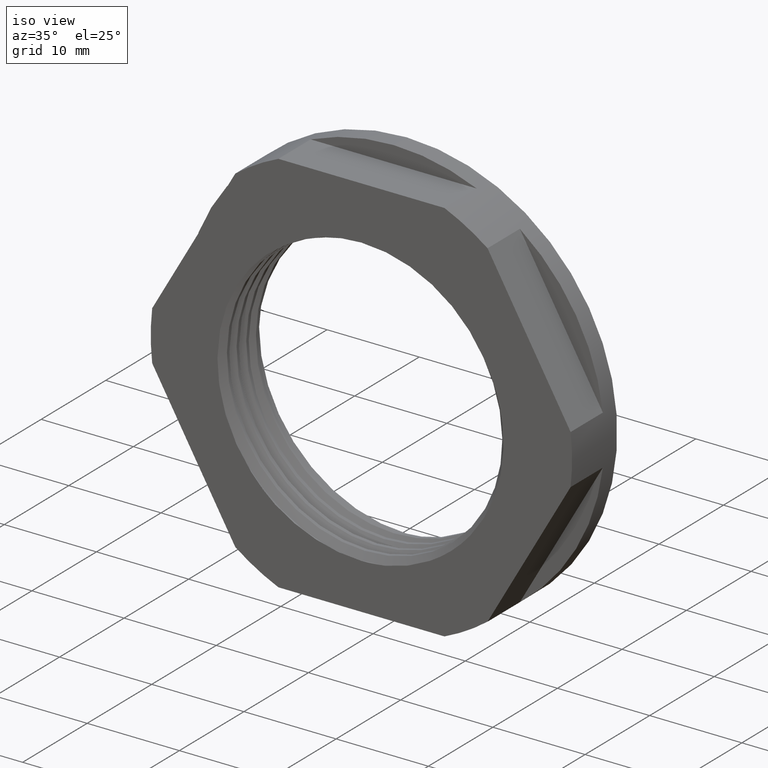
[diagram: clean part render]
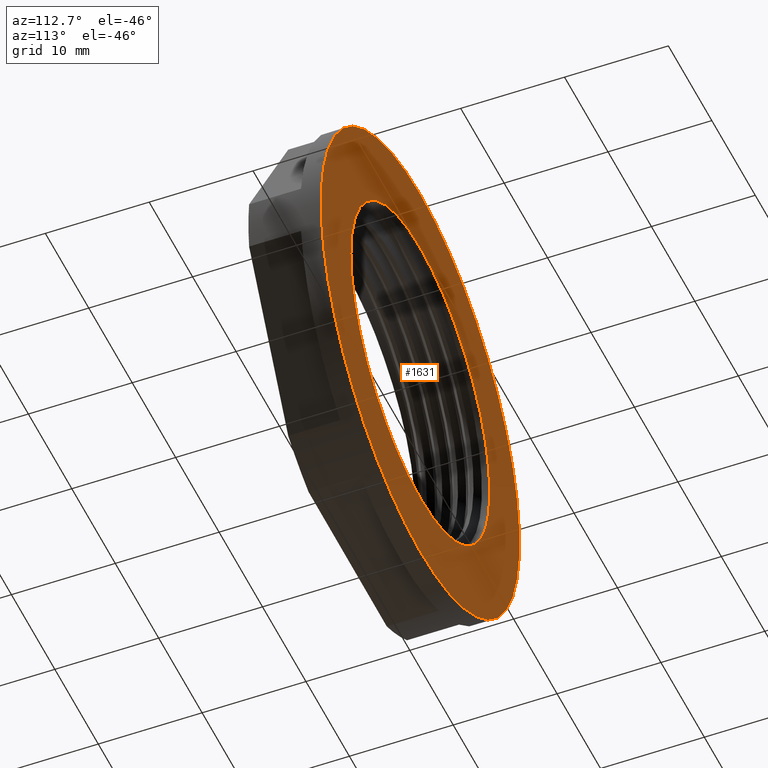
[diagram: tour spotlight — one face highlighted and labeled with its STEP entity id]
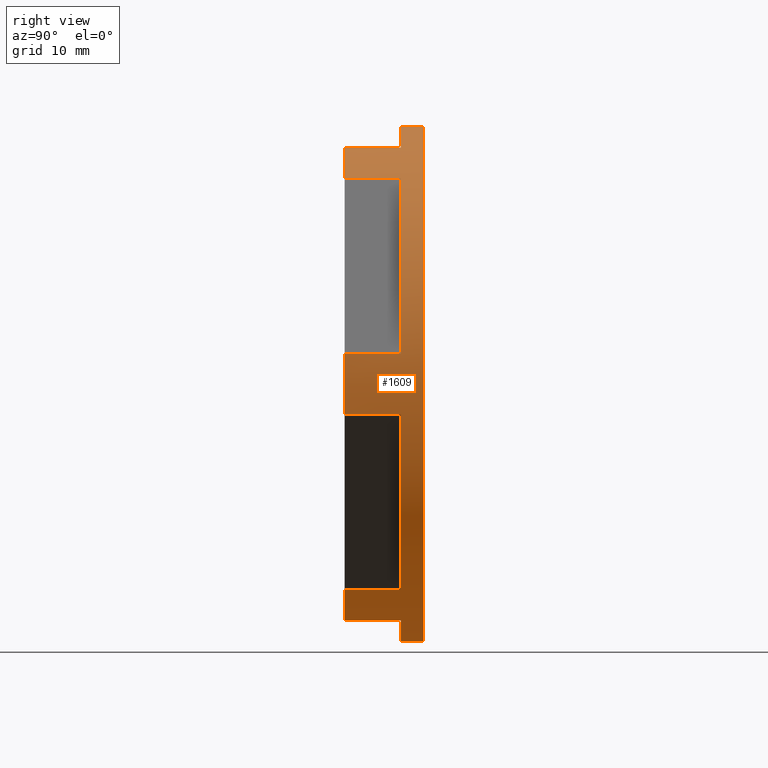
[diagram: tour spotlight — one face highlighted and labeled with its STEP entity id]
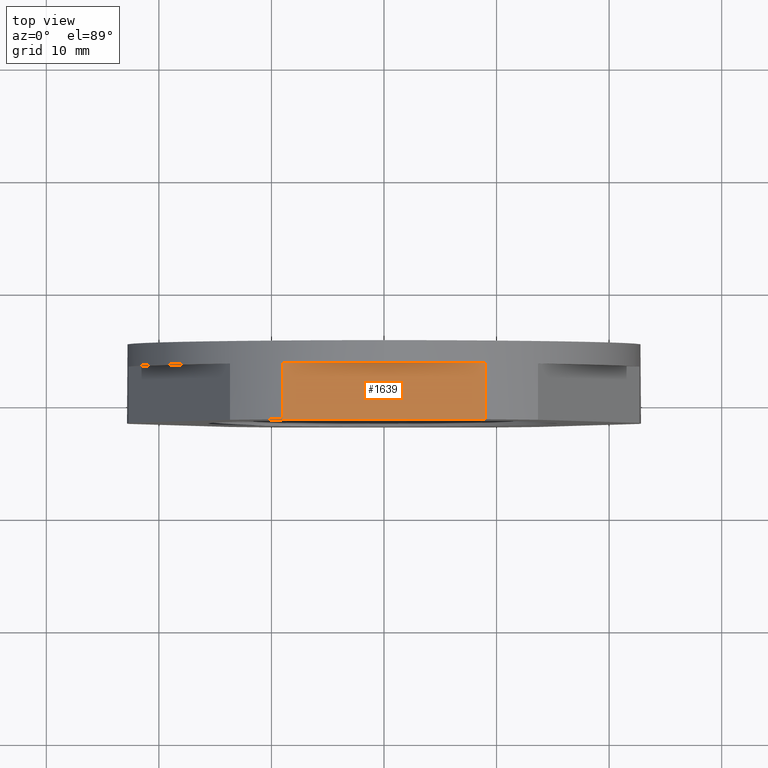
[diagram: tour spotlight — one face highlighted and labeled with its STEP entity id]
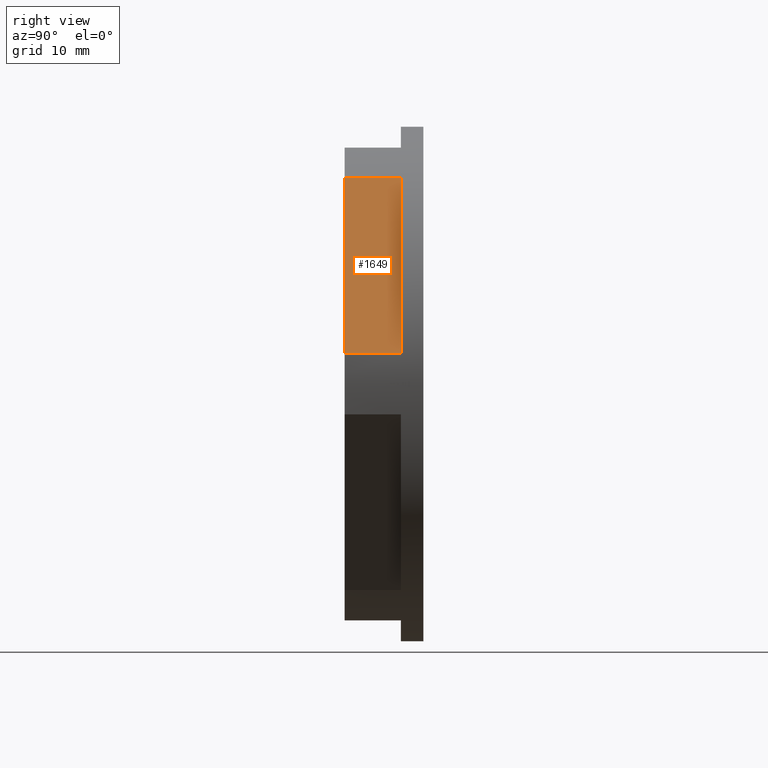
[diagram: tour spotlight — one face highlighted and labeled with its STEP entity id]
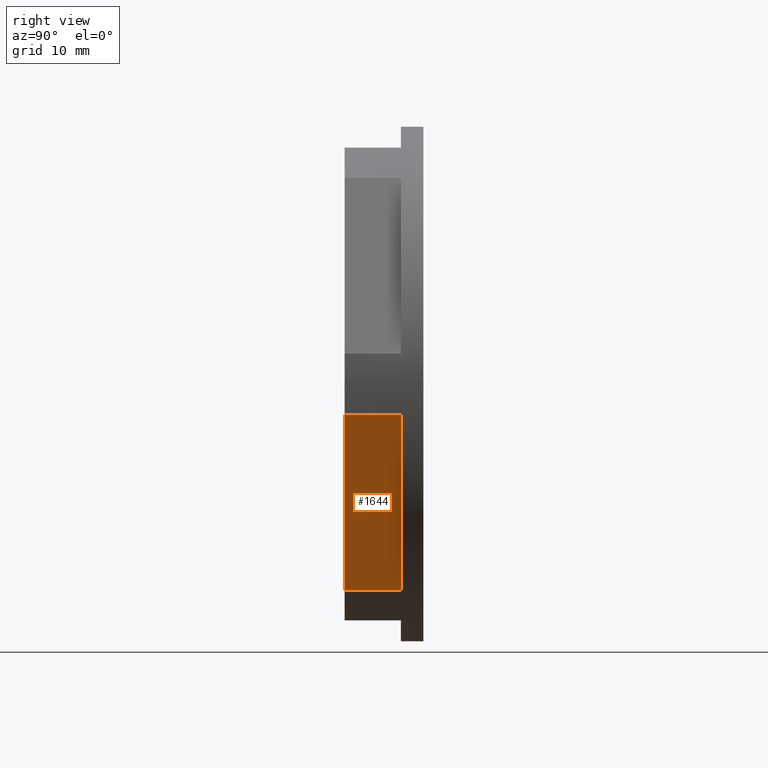
[diagram: tour spotlight — one face highlighted and labeled with its STEP entity id]
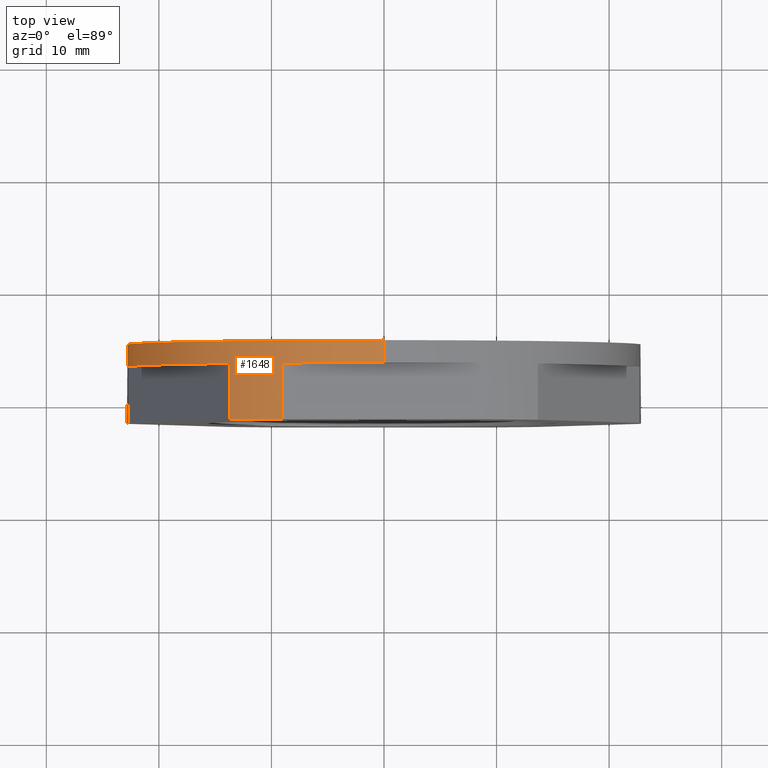
[diagram: tour spotlight — one face highlighted and labeled with its STEP entity id]
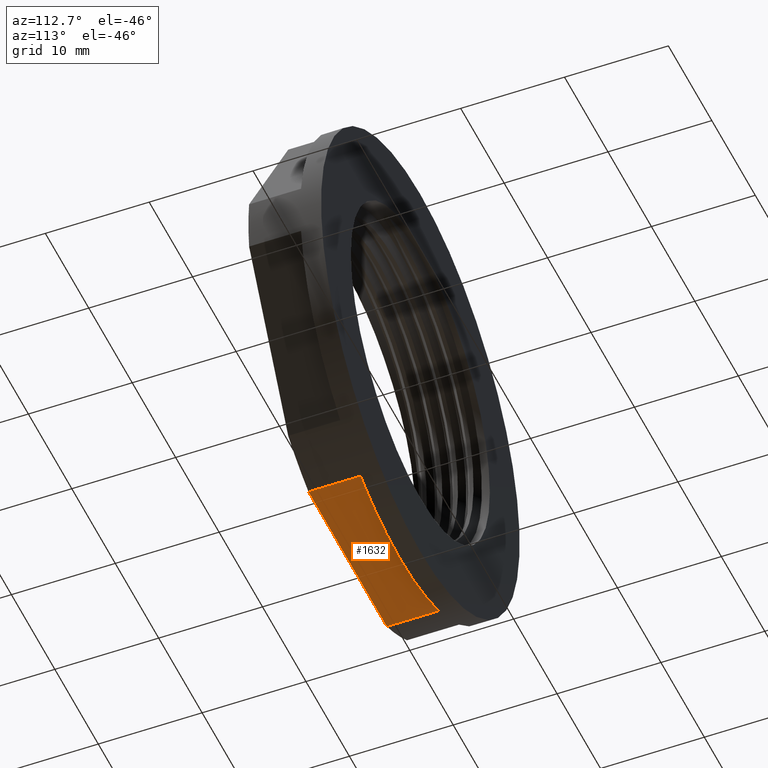
[diagram: tour spotlight — one face highlighted and labeled with its STEP entity id]
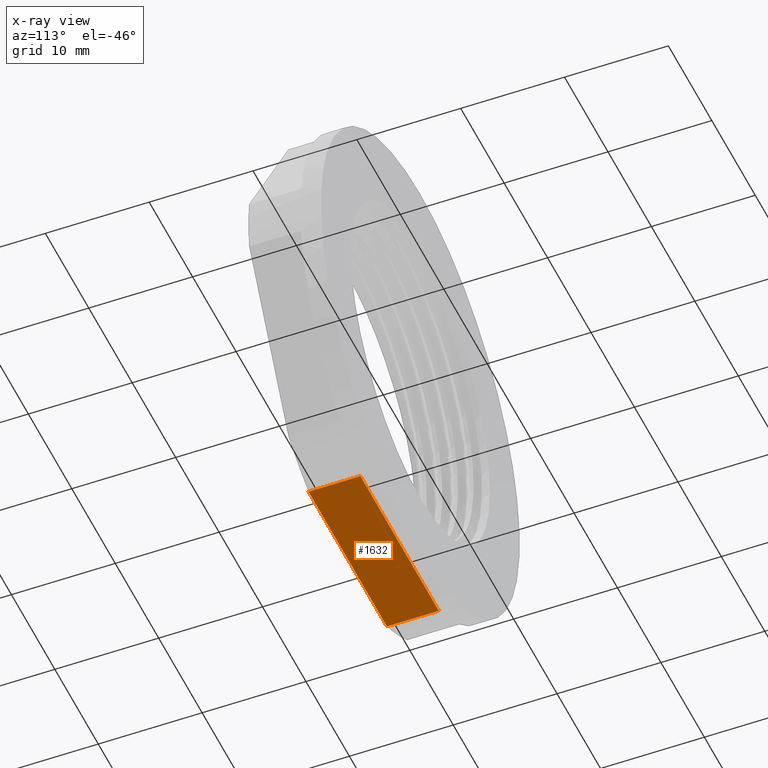
[diagram: x-ray of the same camera — body ghosted, this tour face saturated]
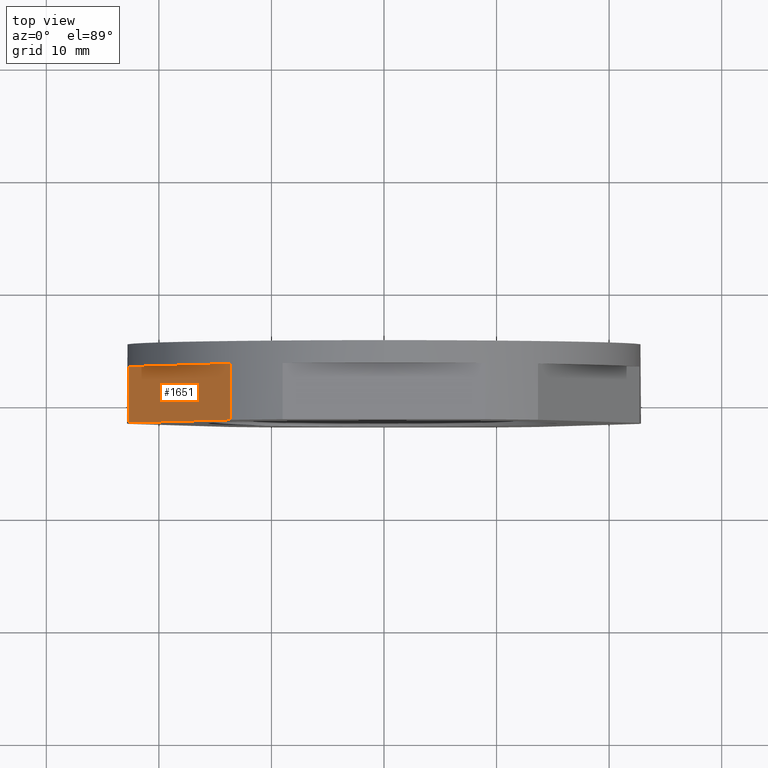
[diagram: tour spotlight — one face highlighted and labeled with its STEP entity id]
A machine part: a face-by-face anatomy tour. The part has 40 B-rep faces; the first image is the clean iso view, then the 8 largest visible faces are spotlighted one at a time (largest first), each with its STEP entity span.

Face 1 — auxiliary view, entity #1631. In plain terms, the highlighted planar face has unit normal (0, -1, 0).
Definition (entity closure, byte-faithful):
#17 = CARTESIAN_POINT ( 'NONE',  ( 2.798317936051703500E-015, -14.80000000000000100, 77.14999999999999100 ) ) ;
#60 = CARTESIAN_POINT ( 'NONE',  ( 0.0000000000000000000, -14.80000000000000100, 116.0000000000000000 ) ) ;
#85 = CARTESIAN_POINT ( 'NONE',  ( 0.0000000000000000000, -14.80000000000000100, 122.8500000000000100 ) ) ;
#198 = DIRECTION ( 'NONE',  ( 0.0000000000000000000, 1.000000000000000000, 0.0000000000000000000 ) ) ;
#219 = DIRECTION ( 'NONE',  ( 0.0000000000000000000, 0.0000000000000000000, 1.000000000000000000 ) ) ;
#234 = CARTESIAN_POINT ( 'NONE',  ( 0.0000000000000000000, -14.80000000000000100, 100.0000000000000000 ) ) ;
#254 = VERTEX_POINT ( 'NONE', #360 ) ;
#284 = VERTEX_POINT ( 'NONE', #60 ) ;
#302 = VERTEX_POINT ( 'NONE', #17 ) ;
#323 = VERTEX_POINT ( 'NONE', #85 ) ;
#357 = EDGE_LOOP ( 'NONE', ( #581, #556 ) ) ;
#359 = EDGE_LOOP ( 'NONE', ( #575, #370 ) ) ;
#360 = CARTESIAN_POINT ( 'NONE',  ( 1.959434878635765100E-015, -14.80000000000000100, 84.00000000000000000 ) ) ;
#370 = ORIENTED_EDGE ( 'NONE', *, *, #1543, .F. ) ;
#556 = ORIENTED_EDGE ( 'NONE', *, *, #1641, .F. ) ;
#575 = ORIENTED_EDGE ( 'NONE', *, *, #1668, .F. ) ;
#581 = ORIENTED_EDGE ( 'NONE', *, *, #1562, .F. ) ;
#645 = DIRECTION ( 'NONE',  ( 0.0000000000000000000, 0.0000000000000000000, 1.000000000000000000 ) ) ;
#655 = CARTESIAN_POINT ( 'NONE',  ( 0.0000000000000000000, -14.80000000000000100, 100.0000000000000000 ) ) ;
#668 = DIRECTION ( 'NONE',  ( -0.0000000000000000000, -1.000000000000000000, -0.0000000000000000000 ) ) ;
#1047 = DIRECTION ( 'NONE',  ( 0.0000000000000000000, -1.000000000000000000, 0.0000000000000000000 ) ) ;
#1056 = DIRECTION ( 'NONE',  ( 0.0000000000000000000, -0.0000000000000000000, -1.000000000000000000 ) ) ;
#1067 = PLANE ( 'NONE',  #1716 ) ;
#1073 = FACE_OUTER_BOUND ( 'NONE', #357, .T. ) ;
#1081 = FACE_BOUND ( 'NONE', #359, .T. ) ;
#1084 = CARTESIAN_POINT ( 'NONE',  ( 0.0000000000000000000, -14.80000000000000100, 76.70000000000000300 ) ) ;
#1127 = DIRECTION ( 'NONE',  ( 0.0000000000000000000, 0.0000000000000000000, 1.000000000000000000 ) ) ;
#1134 = CARTESIAN_POINT ( 'NONE',  ( 0.0000000000000000000, -14.80000000000000100, 100.0000000000000000 ) ) ;
#1137 = DIRECTION ( 'NONE',  ( -0.0000000000000000000, -1.000000000000000000, -0.0000000000000000000 ) ) ;
#1430 = DIRECTION ( 'NONE',  ( 0.0000000000000000000, 1.000000000000000000, 0.0000000000000000000 ) ) ;
#1432 = CARTESIAN_POINT ( 'NONE',  ( 0.0000000000000000000, -14.80000000000000100, 100.0000000000000000 ) ) ;
#1433 = DIRECTION ( 'NONE',  ( 0.0000000000000000000, 0.0000000000000000000, 1.000000000000000000 ) ) ;
#1543 = EDGE_CURVE ( 'NONE', #254, #284, #1781, .T. ) ;
#1562 = EDGE_CURVE ( 'NONE', #323, #302, #1803, .T. ) ;
#1631 = ADVANCED_FACE ( 'NONE', ( #1073, #1081 ), #1067, .F. ) ;
#1641 = EDGE_CURVE ( 'NONE', #302, #323, #1687, .T. ) ;
#1668 = EDGE_CURVE ( 'NONE', #284, #254, #1720, .T. ) ;
#1687 = CIRCLE ( 'NONE', #1690, 22.85000000000000900 ) ;
#1690 = AXIS2_PLACEMENT_3D ( 'NONE', #1134, #1137, #1127 ) ;
#1716 = AXIS2_PLACEMENT_3D ( 'NONE', #1084, #1047, #1056 ) ;
#1720 = CIRCLE ( 'NONE', #1729, 16.00000000000000000 ) ;
#1729 = AXIS2_PLACEMENT_3D ( 'NONE', #1432, #1430, #1433 ) ;
#1781 = CIRCLE ( 'NONE', #1809, 16.00000000000000000 ) ;
#1786 = AXIS2_PLACEMENT_3D ( 'NONE', #655, #668, #645 ) ;
#1803 = CIRCLE ( 'NONE', #1786, 22.85000000000000900 ) ;
#1809 = AXIS2_PLACEMENT_3D ( 'NONE', #234, #198, #219 ) ;

Face 2 — right view, entity #1609. In plain terms, the highlighted cylindrical surface (partial cylindrical patch) has radius 22.85 mm, axis along (0, 1, 0).
Definition (entity closure, byte-faithful):
#1 = CARTESIAN_POINT ( 'NONE',  ( 0.0000000000000000000, -16.80000000000000100, 122.8500000000000100 ) ) ;
#4 = CARTESIAN_POINT ( 'NONE',  ( 9.006802984411331500, -16.80000000000000100, 121.0000000000000000 ) ) ;
#5 = CARTESIAN_POINT ( 'NONE',  ( 13.68313198726754000, -16.80000000000000100, 81.69987980861830600 ) ) ;
#9 = CARTESIAN_POINT ( 'NONE',  ( 22.68993497167886600, -21.80000000000000100, 102.6998798086182900 ) ) ;
#17 = CARTESIAN_POINT ( 'NONE',  ( 2.798317936051703500E-015, -14.80000000000000100, 77.14999999999999100 ) ) ;
#22 = CARTESIAN_POINT ( 'NONE',  ( 13.68313198726753700, -21.80000000000000100, 118.3001201913817100 ) ) ;
#23 = CARTESIAN_POINT ( 'NONE',  ( 22.68993497167887000, -21.80000000000000100, 97.30012019138172300 ) ) ;
#30 = CARTESIAN_POINT ( 'NONE',  ( 13.68313198726754000, -21.80000000000000100, 81.69987980861830600 ) ) ;
#32 = CARTESIAN_POINT ( 'NONE',  ( 22.68993497167887000, -16.80000000000000100, 102.6998798086182900 ) ) ;
#47 = CARTESIAN_POINT ( 'NONE',  ( 13.68313198726753500, -16.80000000000000100, 118.3001201913817100 ) ) ;
#57 = CARTESIAN_POINT ( 'NONE',  ( 9.006802984411331500, -21.80000000000000100, 121.0000000000000000 ) ) ;
#59 = CARTESIAN_POINT ( 'NONE',  ( 9.006802984411297800, -21.80000000000000100, 79.00000000000000000 ) ) ;
#79 = CARTESIAN_POINT ( 'NONE',  ( 9.006802984411297800, -16.80000000000000100, 79.00000000000000000 ) ) ;
#85 = CARTESIAN_POINT ( 'NONE',  ( 0.0000000000000000000, -14.80000000000000100, 122.8500000000000100 ) ) ;
#109 = CARTESIAN_POINT ( 'NONE',  ( 2.798317936051703500E-015, -16.80000000000000100, 77.14999999999999100 ) ) ;
#136 = LINE ( 'NONE', #164, #1755 ) ;
#151 = DIRECTION ( 'NONE',  ( 0.0000000000000000000, 1.000000000000000000, 0.0000000000000000000 ) ) ;
#164 = CARTESIAN_POINT ( 'NONE',  ( 9.006802984411297800, -4.799999999999999800, 79.00000000000000000 ) ) ;
#208 = DIRECTION ( 'NONE',  ( 0.0000000000000000000, 1.000000000000000000, 0.0000000000000000000 ) ) ;
#210 = CARTESIAN_POINT ( 'NONE',  ( 0.0000000000000000000, -21.80000000000000100, 100.0000000000000000 ) ) ;
#225 = DIRECTION ( 'NONE',  ( 0.0000000000000000000, 0.0000000000000000000, 1.000000000000000000 ) ) ;
#242 = DIRECTION ( 'NONE',  ( 0.0000000000000000000, 1.000000000000000000, 0.0000000000000000000 ) ) ;
#243 = DIRECTION ( 'NONE',  ( 0.0000000000000000000, 0.0000000000000000000, 1.000000000000000000 ) ) ;
#245 = CARTESIAN_POINT ( 'NONE',  ( 0.0000000000000000000, -16.80000000000000100, 100.0000000000000000 ) ) ;
#255 = VERTEX_POINT ( 'NONE', #363 ) ;
#256 = VERTEX_POINT ( 'NONE', #32 ) ;
#257 = VERTEX_POINT ( 'NONE', #9 ) ;
#258 = VERTEX_POINT ( 'NONE', #23 ) ;
#259 = VERTEX_POINT ( 'NONE', #5 ) ;
#281 = VERTEX_POINT ( 'NONE', #59 ) ;
#289 = VERTEX_POINT ( 'NONE', #30 ) ;
#296 = VERTEX_POINT ( 'NONE', #4 ) ;
#297 = VERTEX_POINT ( 'NONE', #22 ) ;
#298 = VERTEX_POINT ( 'NONE', #57 ) ;
#302 = VERTEX_POINT ( 'NONE', #17 ) ;
#307 = VERTEX_POINT ( 'NONE', #47 ) ;
#317 = EDGE_LOOP ( 'NONE', ( #414, #455, #381, #377, #379, #388, #386, #417, #399, #375, #393, #390, #394, #371, #378, #444 ) ) ;
#319 = VERTEX_POINT ( 'NONE', #1 ) ;
#323 = VERTEX_POINT ( 'NONE', #85 ) ;
#325 = VERTEX_POINT ( 'NONE', #109 ) ;
#326 = VERTEX_POINT ( 'NONE', #79 ) ;
#363 = CARTESIAN_POINT ( 'NONE',  ( 22.68993497167887000, -16.80000000000000100, 97.30012019138172300 ) ) ;
#371 = ORIENTED_EDGE ( 'NONE', *, *, #1658, .T. ) ;
#375 = ORIENTED_EDGE ( 'NONE', *, *, #1670, .T. ) ;
#377 = ORIENTED_EDGE ( 'NONE', *, *, #1636, .F. ) ;
#378 = ORIENTED_EDGE ( 'NONE', *, *, #1541, .T. ) ;
#379 = ORIENTED_EDGE ( 'NONE', *, *, #1633, .T. ) ;
#381 = ORIENTED_EDGE ( 'NONE', *, *, #1641, .T. ) ;
#386 = ORIENTED_EDGE ( 'NONE', *, *, #1666, .T. ) ;
#388 = ORIENTED_EDGE ( 'NONE', *, *, #1637, .T. ) ;
#390 = ORIENTED_EDGE ( 'NONE', *, *, #1655, .T. ) ;
#393 = ORIENTED_EDGE ( 'NONE', *, *, #1657, .T. ) ;
#394 = ORIENTED_EDGE ( 'NONE', *, *, #1548, .T. ) ;
#399 = ORIENTED_EDGE ( 'NONE', *, *, #1672, .T. ) ;
#414 = ORIENTED_EDGE ( 'NONE', *, *, #1634, .T. ) ;
#417 = ORIENTED_EDGE ( 'NONE', *, *, #1660, .T. ) ;
#444 = ORIENTED_EDGE ( 'NONE', *, *, #1526, .T. ) ;
#455 = ORIENTED_EDGE ( 'NONE', *, *, #1635, .T. ) ;
#796 = FACE_OUTER_BOUND ( 'NONE', #317, .T. ) ;
#797 = DIRECTION ( 'NONE',  ( 0.0000000000000000000, 1.000000000000000000, 0.0000000000000000000 ) ) ;
#798 = DIRECTION ( 'NONE',  ( 0.0000000000000000000, 0.0000000000000000000, 1.000000000000000000 ) ) ;
#829 = CARTESIAN_POINT ( 'NONE',  ( 0.0000000000000000000, -21.80000000000000100, 100.0000000000000000 ) ) ;
#849 = DIRECTION ( 'NONE',  ( 0.0000000000000000000, 0.0000000000000000000, 1.000000000000000000 ) ) ;
#853 = CYLINDRICAL_SURFACE ( 'NONE', #1677, 22.85000000000000900 ) ;
#854 = DIRECTION ( 'NONE',  ( 0.0000000000000000000, 1.000000000000000000, 0.0000000000000000000 ) ) ;
#861 = CARTESIAN_POINT ( 'NONE',  ( 0.0000000000000000000, -4.799999999999999800, 100.0000000000000000 ) ) ;
#1051 = LINE ( 'NONE', #1091, #1700 ) ;
#1091 = CARTESIAN_POINT ( 'NONE',  ( 2.798317936051703500E-015, -4.799999999999999800, 77.14999999999999100 ) ) ;
#1092 = DIRECTION ( 'NONE',  ( 0.0000000000000000000, 1.000000000000000000, 0.0000000000000000000 ) ) ;
#1093 = CARTESIAN_POINT ( 'NONE',  ( 9.006802984411331500, -4.799999999999999800, 121.0000000000000000 ) ) ;
#1096 = DIRECTION ( 'NONE',  ( 0.0000000000000000000, 1.000000000000000000, 0.0000000000000000000 ) ) ;
#1097 = CARTESIAN_POINT ( 'NONE',  ( 0.0000000000000000000, -16.80000000000000100, 100.0000000000000000 ) ) ;
#1098 = LINE ( 'NONE', #1110, #1692 ) ;
#1099 = DIRECTION ( 'NONE',  ( -0.0000000000000000000, -1.000000000000000000, -0.0000000000000000000 ) ) ;
#1102 = DIRECTION ( 'NONE',  ( 0.0000000000000000000, 1.000000000000000000, 0.0000000000000000000 ) ) ;
#1104 = CARTESIAN_POINT ( 'NONE',  ( 0.0000000000000000000, -16.80000000000000100, 100.0000000000000000 ) ) ;
#1110 = CARTESIAN_POINT ( 'NONE',  ( 0.0000000000000000000, -4.799999999999999800, 122.8500000000000100 ) ) ;
#1111 = DIRECTION ( 'NONE',  ( 0.0000000000000000000, 0.0000000000000000000, 1.000000000000000000 ) ) ;
#1112 = DIRECTION ( 'NONE',  ( 0.0000000000000000000, 1.000000000000000000, 0.0000000000000000000 ) ) ;
#1113 = LINE ( 'NONE', #1093, #1688 ) ;
#1114 = DIRECTION ( 'NONE',  ( 0.0000000000000000000, 0.0000000000000000000, 1.000000000000000000 ) ) ;
#1127 = DIRECTION ( 'NONE',  ( 0.0000000000000000000, 0.0000000000000000000, 1.000000000000000000 ) ) ;
#1134 = CARTESIAN_POINT ( 'NONE',  ( 0.0000000000000000000, -14.80000000000000100, 100.0000000000000000 ) ) ;
#1137 = DIRECTION ( 'NONE',  ( -0.0000000000000000000, -1.000000000000000000, -0.0000000000000000000 ) ) ;
#1283 = LINE ( 'NONE', #1288, #1719 ) ;
#1288 = CARTESIAN_POINT ( 'NONE',  ( 22.68993497167887000, -4.799999999999999800, 97.30012019138172300 ) ) ;
#1289 = DIRECTION ( 'NONE',  ( 0.0000000000000000000, 1.000000000000000000, 0.0000000000000000000 ) ) ;
#1343 = DIRECTION ( 'NONE',  ( 0.0000000000000000000, 1.000000000000000000, 0.0000000000000000000 ) ) ;
#1344 = DIRECTION ( 'NONE',  ( -0.0000000000000000000, -1.000000000000000000, -0.0000000000000000000 ) ) ;
#1346 = CARTESIAN_POINT ( 'NONE',  ( 13.68313198726753700, -4.799999999999999800, 118.3001201913817100 ) ) ;
#1349 = CARTESIAN_POINT ( 'NONE',  ( 0.0000000000000000000, -21.80000000000000100, 100.0000000000000000 ) ) ;
#1351 = CARTESIAN_POINT ( 'NONE',  ( 13.68313198726754000, -4.799999999999999800, 81.69987980861830600 ) ) ;
#1357 = DIRECTION ( 'NONE',  ( 0.0000000000000000000, 0.0000000000000000000, 1.000000000000000000 ) ) ;
#1358 = LINE ( 'NONE', #1351, #1740 ) ;
#1366 = DIRECTION ( 'NONE',  ( 0.0000000000000000000, 1.000000000000000000, 0.0000000000000000000 ) ) ;
#1370 = LINE ( 'NONE', #1346, #1738 ) ;
#1440 = CARTESIAN_POINT ( 'NONE',  ( 0.0000000000000000000, -16.80000000000000100, 100.0000000000000000 ) ) ;
#1446 = DIRECTION ( 'NONE',  ( 0.0000000000000000000, 1.000000000000000000, 0.0000000000000000000 ) ) ;
#1447 = CARTESIAN_POINT ( 'NONE',  ( 22.68993497167886600, -4.799999999999999800, 102.6998798086182900 ) ) ;
#1451 = DIRECTION ( 'NONE',  ( 0.0000000000000000000, 0.0000000000000000000, 1.000000000000000000 ) ) ;
#1459 = LINE ( 'NONE', #1447, #1741 ) ;
#1465 = DIRECTION ( 'NONE',  ( -0.0000000000000000000, -1.000000000000000000, -0.0000000000000000000 ) ) ;
#1526 = EDGE_CURVE ( 'NONE', #281, #326, #136, .T. ) ;
#1541 = EDGE_CURVE ( 'NONE', #289, #281, #1752, .T. ) ;
#1548 = EDGE_CURVE ( 'NONE', #255, #259, #1777, .T. ) ;
#1609 = ADVANCED_FACE ( 'NONE', ( #796 ), #853, .T. ) ;
#1633 = EDGE_CURVE ( 'NONE', #319, #296, #1682, .T. ) ;
#1634 = EDGE_CURVE ( 'NONE', #326, #325, #1691, .T. ) ;
#1635 = EDGE_CURVE ( 'NONE', #325, #302, #1051, .T. ) ;
#1636 = EDGE_CURVE ( 'NONE', #319, #323, #1098, .T. ) ;
#1637 = EDGE_CURVE ( 'NONE', #296, #298, #1113, .T. ) ;
#1641 = EDGE_CURVE ( 'NONE', #302, #323, #1687, .T. ) ;
#1655 = EDGE_CURVE ( 'NONE', #258, #255, #1283, .T. ) ;
#1657 = EDGE_CURVE ( 'NONE', #257, #258, #1725, .T. ) ;
#1658 = EDGE_CURVE ( 'NONE', #259, #289, #1358, .T. ) ;
#1660 = EDGE_CURVE ( 'NONE', #297, #307, #1370, .T. ) ;
#1666 = EDGE_CURVE ( 'NONE', #298, #297, #1727, .T. ) ;
#1670 = EDGE_CURVE ( 'NONE', #256, #257, #1459, .T. ) ;
#1672 = EDGE_CURVE ( 'NONE', #307, #256, #1742, .T. ) ;
#1677 = AXIS2_PLACEMENT_3D ( 'NONE', #861, #854, #849 ) ;
#1682 = CIRCLE ( 'NONE', #1703, 22.85000000000000900 ) ;
#1683 = AXIS2_PLACEMENT_3D ( 'NONE', #1097, #1112, #1111 ) ;
#1687 = CIRCLE ( 'NONE', #1690, 22.85000000000000900 ) ;
#1688 = VECTOR ( 'NONE', #1099, 1000.000000000000000 ) ;
#1690 = AXIS2_PLACEMENT_3D ( 'NONE', #1134, #1137, #1127 ) ;
#1691 = CIRCLE ( 'NONE', #1683, 22.85000000000000900 ) ;
#1692 = VECTOR ( 'NONE', #1096, 1000.000000000000000 ) ;
#1700 = VECTOR ( 'NONE', #1102, 1000.000000000000000 ) ;
#1703 = AXIS2_PLACEMENT_3D ( 'NONE', #1104, #1092, #1114 ) ;
#1719 = VECTOR ( 'NONE', #1289, 1000.000000000000000 ) ;
#1724 = AXIS2_PLACEMENT_3D ( 'NONE', #829, #797, #798 ) ;
#1725 = CIRCLE ( 'NONE', #1739, 22.85000000000000900 ) ;
#1727 = CIRCLE ( 'NONE', #1724, 22.85000000000000900 ) ;
#1736 = AXIS2_PLACEMENT_3D ( 'NONE', #1440, #1446, #1451 ) ;
#1738 = VECTOR ( 'NONE', #1366, 1000.000000000000000 ) ;
#1739 = AXIS2_PLACEMENT_3D ( 'NONE', #1349, #1343, #1357 ) ;
#1740 = VECTOR ( 'NONE', #1344, 1000.000000000000000 ) ;
#1741 = VECTOR ( 'NONE', #1465, 1000.000000000000000 ) ;
#1742 = CIRCLE ( 'NONE', #1736, 22.85000000000000900 ) ;
#1752 = CIRCLE ( 'NONE', #1765, 22.85000000000000900 ) ;
#1755 = VECTOR ( 'NONE', #151, 1000.000000000000000 ) ;
#1765 = AXIS2_PLACEMENT_3D ( 'NONE', #210, #208, #225 ) ;
#1777 = CIRCLE ( 'NONE', #1811, 22.85000000000000900 ) ;
#1811 = AXIS2_PLACEMENT_3D ( 'NONE', #245, #242, #243 ) ;

Face 3 — top view, entity #1639. In plain terms, the highlighted planar face has unit normal (0, 0, 1).
Definition (entity closure, byte-faithful):
#4 = CARTESIAN_POINT ( 'NONE',  ( 9.006802984411331500, -16.80000000000000100, 121.0000000000000000 ) ) ;
#57 = CARTESIAN_POINT ( 'NONE',  ( 9.006802984411331500, -21.80000000000000100, 121.0000000000000000 ) ) ;
#78 = CARTESIAN_POINT ( 'NONE',  ( -9.006802984411331500, -21.80000000000000100, 121.0000000000000000 ) ) ;
#113 = CARTESIAN_POINT ( 'NONE',  ( -9.006802984411331500, -16.80000000000000100, 121.0000000000000000 ) ) ;
#296 = VERTEX_POINT ( 'NONE', #4 ) ;
#298 = VERTEX_POINT ( 'NONE', #57 ) ;
#331 = EDGE_LOOP ( 'NONE', ( #585, #551, #586, #577 ) ) ;
#358 = VERTEX_POINT ( 'NONE', #78 ) ;
#367 = VERTEX_POINT ( 'NONE', #113 ) ;
#551 = ORIENTED_EDGE ( 'NONE', *, *, #1589, .T. ) ;
#577 = ORIENTED_EDGE ( 'NONE', *, *, #1561, .T. ) ;
#585 = ORIENTED_EDGE ( 'NONE', *, *, #1637, .F. ) ;
#586 = ORIENTED_EDGE ( 'NONE', *, *, #1594, .F. ) ;
#649 = DIRECTION ( 'NONE',  ( 1.000000000000000000, 0.0000000000000000000, 0.0000000000000000000 ) ) ;
#788 = LINE ( 'NONE', #830, #1796 ) ;
#799 = DIRECTION ( 'NONE',  ( 0.0000000000000000000, 1.000000000000000000, 0.0000000000000000000 ) ) ;
#820 = DIRECTION ( 'NONE',  ( -1.000000000000000000, 0.0000000000000000000, 0.0000000000000000000 ) ) ;
#825 = LINE ( 'NONE', #828, #1681 ) ;
#828 = CARTESIAN_POINT ( 'NONE',  ( -9.006802984411331500, -4.799999999999999800, 121.0000000000000000 ) ) ;
#830 = CARTESIAN_POINT ( 'NONE',  ( 10.19742614584678000, -16.79999999999999700, 121.0000000000000000 ) ) ;
#1087 = DIRECTION ( 'NONE',  ( 0.0000000000000000000, 0.0000000000000000000, 1.000000000000000000 ) ) ;
#1093 = CARTESIAN_POINT ( 'NONE',  ( 9.006802984411331500, -4.799999999999999800, 121.0000000000000000 ) ) ;
#1099 = DIRECTION ( 'NONE',  ( -0.0000000000000000000, -1.000000000000000000, -0.0000000000000000000 ) ) ;
#1103 = CARTESIAN_POINT ( 'NONE',  ( 10.19742614584678000, 45.86713652306130500, 121.0000000000000000 ) ) ;
#1106 = FACE_OUTER_BOUND ( 'NONE', #331, .T. ) ;
#1108 = PLANE ( 'NONE',  #1696 ) ;
#1109 = DIRECTION ( 'NONE',  ( 1.000000000000000000, 0.0000000000000000000, -0.0000000000000000000 ) ) ;
#1113 = LINE ( 'NONE', #1093, #1688 ) ;
#1405 = LINE ( 'NONE', #1406, #1806 ) ;
#1406 = CARTESIAN_POINT ( 'NONE',  ( 0.0000000000000000000, -21.80000000000000100, 121.0000000000000000 ) ) ;
#1561 = EDGE_CURVE ( 'NONE', #358, #298, #1405, .T. ) ;
#1589 = EDGE_CURVE ( 'NONE', #296, #367, #788, .T. ) ;
#1594 = EDGE_CURVE ( 'NONE', #358, #367, #825, .T. ) ;
#1637 = EDGE_CURVE ( 'NONE', #296, #298, #1113, .T. ) ;
#1639 = ADVANCED_FACE ( 'NONE', ( #1106 ), #1108, .T. ) ;
#1681 = VECTOR ( 'NONE', #799, 1000.000000000000000 ) ;
#1688 = VECTOR ( 'NONE', #1099, 1000.000000000000000 ) ;
#1696 = AXIS2_PLACEMENT_3D ( 'NONE', #1103, #1087, #1109 ) ;
#1796 = VECTOR ( 'NONE', #820, 1000.000000000000000 ) ;
#1806 = VECTOR ( 'NONE', #649, 1000.000000000000000 ) ;

Face 4 — right view, entity #1649. In plain terms, the highlighted planar face has unit normal (0.866, -0, 0.5).
Definition (entity closure, byte-faithful):
#9 = CARTESIAN_POINT ( 'NONE',  ( 22.68993497167886600, -21.80000000000000100, 102.6998798086182900 ) ) ;
#22 = CARTESIAN_POINT ( 'NONE',  ( 13.68313198726753700, -21.80000000000000100, 118.3001201913817100 ) ) ;
#32 = CARTESIAN_POINT ( 'NONE',  ( 22.68993497167887000, -16.80000000000000100, 102.6998798086182900 ) ) ;
#47 = CARTESIAN_POINT ( 'NONE',  ( 13.68313198726753500, -16.80000000000000100, 118.3001201913817100 ) ) ;
#256 = VERTEX_POINT ( 'NONE', #32 ) ;
#257 = VERTEX_POINT ( 'NONE', #9 ) ;
#297 = VERTEX_POINT ( 'NONE', #22 ) ;
#307 = VERTEX_POINT ( 'NONE', #47 ) ;
#330 = EDGE_LOOP ( 'NONE', ( #519, #518, #467, #531 ) ) ;
#467 = ORIENTED_EDGE ( 'NONE', *, *, #1660, .F. ) ;
#518 = ORIENTED_EDGE ( 'NONE', *, *, #1586, .T. ) ;
#519 = ORIENTED_EDGE ( 'NONE', *, *, #1670, .F. ) ;
#531 = ORIENTED_EDGE ( 'NONE', *, *, #1590, .T. ) ;
#750 = LINE ( 'NONE', #786, #1775 ) ;
#786 = CARTESIAN_POINT ( 'NONE',  ( 23.28524655239662200, -16.79999999999999700, 101.6687699044810000 ) ) ;
#802 = DIRECTION ( 'NONE',  ( 0.4999999999999998900, 0.0000000000000000000, -0.8660254037844387100 ) ) ;
#809 = DIRECTION ( 'NONE',  ( -0.4999999999999998900, 0.0000000000000000000, 0.8660254037844387100 ) ) ;
#816 = CARTESIAN_POINT ( 'NONE',  ( 25.11473670974870800, -21.80000000000000100, 98.49999999999998600 ) ) ;
#831 = LINE ( 'NONE', #816, #1801 ) ;
#1187 = CARTESIAN_POINT ( 'NONE',  ( 23.28524655239662200, 45.86713652306130500, 101.6687699044810000 ) ) ;
#1191 = FACE_OUTER_BOUND ( 'NONE', #330, .T. ) ;
#1192 = DIRECTION ( 'NONE',  ( 0.8660254037844387100, -0.0000000000000000000, 0.4999999999999998900 ) ) ;
#1193 = DIRECTION ( 'NONE',  ( 0.4999999999999998900, 0.0000000000000000000, -0.8660254037844387100 ) ) ;
#1197 = PLANE ( 'NONE',  #1704 ) ;
#1346 = CARTESIAN_POINT ( 'NONE',  ( 13.68313198726753700, -4.799999999999999800, 118.3001201913817100 ) ) ;
#1366 = DIRECTION ( 'NONE',  ( 0.0000000000000000000, 1.000000000000000000, 0.0000000000000000000 ) ) ;
#1370 = LINE ( 'NONE', #1346, #1738 ) ;
#1447 = CARTESIAN_POINT ( 'NONE',  ( 22.68993497167886600, -4.799999999999999800, 102.6998798086182900 ) ) ;
#1459 = LINE ( 'NONE', #1447, #1741 ) ;
#1465 = DIRECTION ( 'NONE',  ( -0.0000000000000000000, -1.000000000000000000, -0.0000000000000000000 ) ) ;
#1586 = EDGE_CURVE ( 'NONE', #256, #307, #750, .T. ) ;
#1590 = EDGE_CURVE ( 'NONE', #297, #257, #831, .T. ) ;
#1649 = ADVANCED_FACE ( 'NONE', ( #1191 ), #1197, .T. ) ;
#1660 = EDGE_CURVE ( 'NONE', #297, #307, #1370, .T. ) ;
#1670 = EDGE_CURVE ( 'NONE', #256, #257, #1459, .T. ) ;
#1704 = AXIS2_PLACEMENT_3D ( 'NONE', #1187, #1192, #1193 ) ;
#1738 = VECTOR ( 'NONE', #1366, 1000.000000000000000 ) ;
#1741 = VECTOR ( 'NONE', #1465, 1000.000000000000000 ) ;
#1775 = VECTOR ( 'NONE', #809, 1000.000000000000000 ) ;
#1801 = VECTOR ( 'NONE', #802, 1000.000000000000000 ) ;

Face 5 — right view, entity #1644. In plain terms, the highlighted planar face has unit normal (0.866, 0, -0.5).
Definition (entity closure, byte-faithful):
#5 = CARTESIAN_POINT ( 'NONE',  ( 13.68313198726754000, -16.80000000000000100, 81.69987980861830600 ) ) ;
#23 = CARTESIAN_POINT ( 'NONE',  ( 22.68993497167887000, -21.80000000000000100, 97.30012019138172300 ) ) ;
#30 = CARTESIAN_POINT ( 'NONE',  ( 13.68313198726754000, -21.80000000000000100, 81.69987980861830600 ) ) ;
#255 = VERTEX_POINT ( 'NONE', #363 ) ;
#258 = VERTEX_POINT ( 'NONE', #23 ) ;
#259 = VERTEX_POINT ( 'NONE', #5 ) ;
#289 = VERTEX_POINT ( 'NONE', #30 ) ;
#342 = EDGE_LOOP ( 'NONE', ( #539, #520, #516, #478 ) ) ;
#363 = CARTESIAN_POINT ( 'NONE',  ( 22.68993497167887000, -16.80000000000000100, 97.30012019138172300 ) ) ;
#478 = ORIENTED_EDGE ( 'NONE', *, *, #1567, .T. ) ;
#516 = ORIENTED_EDGE ( 'NONE', *, *, #1655, .F. ) ;
#520 = ORIENTED_EDGE ( 'NONE', *, *, #1560, .T. ) ;
#539 = ORIENTED_EDGE ( 'NONE', *, *, #1658, .F. ) ;
#647 = DIRECTION ( 'NONE',  ( -0.4999999999999998900, 0.0000000000000000000, -0.8660254037844387100 ) ) ;
#648 = CARTESIAN_POINT ( 'NONE',  ( 11.25833024919769600, -21.80000000000000100, 77.50000000000001400 ) ) ;
#657 = LINE ( 'NONE', #648, #1778 ) ;
#1145 = DIRECTION ( 'NONE',  ( 0.8660254037844387100, 0.0000000000000000000, -0.4999999999999998900 ) ) ;
#1146 = DIRECTION ( 'NONE',  ( -0.4999999999999998900, 0.0000000000000000000, -0.8660254037844387100 ) ) ;
#1153 = CARTESIAN_POINT ( 'NONE',  ( 13.08782040654978100, 45.86713652306130500, 80.66876990448101000 ) ) ;
#1155 = FACE_OUTER_BOUND ( 'NONE', #342, .T. ) ;
#1158 = PLANE ( 'NONE',  #1697 ) ;
#1283 = LINE ( 'NONE', #1288, #1719 ) ;
#1288 = CARTESIAN_POINT ( 'NONE',  ( 22.68993497167887000, -4.799999999999999800, 97.30012019138172300 ) ) ;
#1289 = DIRECTION ( 'NONE',  ( 0.0000000000000000000, 1.000000000000000000, 0.0000000000000000000 ) ) ;
#1344 = DIRECTION ( 'NONE',  ( -0.0000000000000000000, -1.000000000000000000, -0.0000000000000000000 ) ) ;
#1351 = CARTESIAN_POINT ( 'NONE',  ( 13.68313198726754000, -4.799999999999999800, 81.69987980861830600 ) ) ;
#1358 = LINE ( 'NONE', #1351, #1740 ) ;
#1399 = LINE ( 'NONE', #1401, #1805 ) ;
#1401 = CARTESIAN_POINT ( 'NONE',  ( 13.08782040654978100, -16.79999999999999700, 80.66876990448101000 ) ) ;
#1403 = DIRECTION ( 'NONE',  ( 0.4999999999999998900, 0.0000000000000000000, 0.8660254037844387100 ) ) ;
#1560 = EDGE_CURVE ( 'NONE', #259, #255, #1399, .T. ) ;
#1567 = EDGE_CURVE ( 'NONE', #258, #289, #657, .T. ) ;
#1644 = ADVANCED_FACE ( 'NONE', ( #1155 ), #1158, .T. ) ;
#1655 = EDGE_CURVE ( 'NONE', #258, #255, #1283, .T. ) ;
#1658 = EDGE_CURVE ( 'NONE', #259, #289, #1358, .T. ) ;
#1697 = AXIS2_PLACEMENT_3D ( 'NONE', #1153, #1145, #1146 ) ;
#1719 = VECTOR ( 'NONE', #1289, 1000.000000000000000 ) ;
#1740 = VECTOR ( 'NONE', #1344, 1000.000000000000000 ) ;
#1778 = VECTOR ( 'NONE', #647, 1000.000000000000000 ) ;
#1805 = VECTOR ( 'NONE', #1403, 1000.000000000000000 ) ;

Face 6 — top view, entity #1648. In plain terms, the highlighted cylindrical surface (partial cylindrical patch) has radius 22.85 mm, axis along (0, 1, 0).
Definition (entity closure, byte-faithful):
#1 = CARTESIAN_POINT ( 'NONE',  ( 0.0000000000000000000, -16.80000000000000100, 122.8500000000000100 ) ) ;
#12 = CARTESIAN_POINT ( 'NONE',  ( -9.006802984411297800, -16.80000000000000100, 79.00000000000000000 ) ) ;
#13 = CARTESIAN_POINT ( 'NONE',  ( -9.006802984411297800, -21.80000000000000100, 79.00000000000000000 ) ) ;
#17 = CARTESIAN_POINT ( 'NONE',  ( 2.798317936051703500E-015, -14.80000000000000100, 77.14999999999999100 ) ) ;
#19 = CARTESIAN_POINT ( 'NONE',  ( -22.68993497167885600, -16.80000000000000100, 102.6998798086183900 ) ) ;
#29 = CARTESIAN_POINT ( 'NONE',  ( -22.68993497167885200, -21.80000000000000100, 97.30012019138158100 ) ) ;
#38 = CARTESIAN_POINT ( 'NONE',  ( -13.68313198726765000, -21.80000000000000100, 81.69987980861837700 ) ) ;
#42 = CARTESIAN_POINT ( 'NONE',  ( -22.68993497167885200, -16.80000000000000100, 97.30012019138158100 ) ) ;
#53 = CARTESIAN_POINT ( 'NONE',  ( -13.68313198726763200, -16.80000000000000100, 118.3001201913816400 ) ) ;
#55 = CARTESIAN_POINT ( 'NONE',  ( -13.68313198726764700, -16.80000000000000100, 81.69987980861837700 ) ) ;
#78 = CARTESIAN_POINT ( 'NONE',  ( -9.006802984411331500, -21.80000000000000100, 121.0000000000000000 ) ) ;
#85 = CARTESIAN_POINT ( 'NONE',  ( 0.0000000000000000000, -14.80000000000000100, 122.8500000000000100 ) ) ;
#90 = CARTESIAN_POINT ( 'NONE',  ( -22.68993497167885900, -21.80000000000000100, 102.6998798086183900 ) ) ;
#97 = CARTESIAN_POINT ( 'NONE',  ( -13.68313198726762700, -21.80000000000000100, 118.3001201913816400 ) ) ;
#109 = CARTESIAN_POINT ( 'NONE',  ( 2.798317936051703500E-015, -16.80000000000000100, 77.14999999999999100 ) ) ;
#113 = CARTESIAN_POINT ( 'NONE',  ( -9.006802984411331500, -16.80000000000000100, 121.0000000000000000 ) ) ;
#114 = DIRECTION ( 'NONE',  ( 0.0000000000000000000, 1.000000000000000000, 0.0000000000000000000 ) ) ;
#117 = DIRECTION ( 'NONE',  ( 0.0000000000000000000, 0.0000000000000000000, 1.000000000000000000 ) ) ;
#118 = DIRECTION ( 'NONE',  ( -0.0000000000000000000, -1.000000000000000000, -0.0000000000000000000 ) ) ;
#121 = CARTESIAN_POINT ( 'NONE',  ( -22.68993497167885900, -4.799999999999999800, 102.6998798086183900 ) ) ;
#127 = LINE ( 'NONE', #141, #1767 ) ;
#128 = CARTESIAN_POINT ( 'NONE',  ( -13.68313198726765000, -4.799999999999999800, 81.69987980861837700 ) ) ;
#132 = DIRECTION ( 'NONE',  ( 0.0000000000000000000, 1.000000000000000000, 0.0000000000000000000 ) ) ;
#134 = LINE ( 'NONE', #121, #1768 ) ;
#138 = DIRECTION ( 'NONE',  ( 0.0000000000000000000, 1.000000000000000000, 0.0000000000000000000 ) ) ;
#139 = LINE ( 'NONE', #128, #1753 ) ;
#141 = CARTESIAN_POINT ( 'NONE',  ( -22.68993497167885200, -4.799999999999999800, 97.30012019138158100 ) ) ;
#148 = CARTESIAN_POINT ( 'NONE',  ( 0.0000000000000000000, -16.80000000000000100, 100.0000000000000000 ) ) ;
#178 = CARTESIAN_POINT ( 'NONE',  ( -13.68313198726762700, -4.799999999999999800, 118.3001201913816400 ) ) ;
#179 = DIRECTION ( 'NONE',  ( -0.0000000000000000000, -1.000000000000000000, -0.0000000000000000000 ) ) ;
#188 = LINE ( 'NONE', #178, #1763 ) ;
#263 = VERTEX_POINT ( 'NONE', #29 ) ;
#283 = VERTEX_POINT ( 'NONE', #12 ) ;
#295 = VERTEX_POINT ( 'NONE', #19 ) ;
#302 = VERTEX_POINT ( 'NONE', #17 ) ;
#308 = VERTEX_POINT ( 'NONE', #53 ) ;
#309 = VERTEX_POINT ( 'NONE', #38 ) ;
#314 = VERTEX_POINT ( 'NONE', #42 ) ;
#318 = VERTEX_POINT ( 'NONE', #55 ) ;
#319 = VERTEX_POINT ( 'NONE', #1 ) ;
#321 = VERTEX_POINT ( 'NONE', #13 ) ;
#323 = VERTEX_POINT ( 'NONE', #85 ) ;
#325 = VERTEX_POINT ( 'NONE', #109 ) ;
#358 = VERTEX_POINT ( 'NONE', #78 ) ;
#362 = EDGE_LOOP ( 'NONE', ( #555, #526, #562, #506, #584, #564, #570, #557, #576, #574, #529, #527, #509, #578, #580, #565 ) ) ;
#366 = VERTEX_POINT ( 'NONE', #97 ) ;
#367 = VERTEX_POINT ( 'NONE', #113 ) ;
#387 = VERTEX_POINT ( 'NONE', #90 ) ;
#506 = ORIENTED_EDGE ( 'NONE', *, *, #1582, .T. ) ;
#509 = ORIENTED_EDGE ( 'NONE', *, *, #1594, .T. ) ;
#526 = ORIENTED_EDGE ( 'NONE', *, *, #1588, .T. ) ;
#527 = ORIENTED_EDGE ( 'NONE', *, *, #1576, .T. ) ;
#529 = ORIENTED_EDGE ( 'NONE', *, *, #1533, .T. ) ;
#555 = ORIENTED_EDGE ( 'NONE', *, *, #1635, .F. ) ;
#557 = ORIENTED_EDGE ( 'NONE', *, *, #1583, .T. ) ;
#562 = ORIENTED_EDGE ( 'NONE', *, *, #1593, .T. ) ;
#564 = ORIENTED_EDGE ( 'NONE', *, *, #1519, .T. ) ;
#565 = ORIENTED_EDGE ( 'NONE', *, *, #1562, .T. ) ;
#570 = ORIENTED_EDGE ( 'NONE', *, *, #1520, .T. ) ;
#574 = ORIENTED_EDGE ( 'NONE', *, *, #1580, .T. ) ;
#576 = ORIENTED_EDGE ( 'NONE', *, *, #1521, .T. ) ;
#578 = ORIENTED_EDGE ( 'NONE', *, *, #1585, .T. ) ;
#580 = ORIENTED_EDGE ( 'NONE', *, *, #1636, .T. ) ;
#584 = ORIENTED_EDGE ( 'NONE', *, *, #1522, .T. ) ;
#645 = DIRECTION ( 'NONE',  ( 0.0000000000000000000, 0.0000000000000000000, 1.000000000000000000 ) ) ;
#655 = CARTESIAN_POINT ( 'NONE',  ( 0.0000000000000000000, -14.80000000000000100, 100.0000000000000000 ) ) ;
#668 = DIRECTION ( 'NONE',  ( -0.0000000000000000000, -1.000000000000000000, -0.0000000000000000000 ) ) ;
#675 = DIRECTION ( 'NONE',  ( 0.0000000000000000000, 1.000000000000000000, 0.0000000000000000000 ) ) ;
#702 = CARTESIAN_POINT ( 'NONE',  ( 0.0000000000000000000, -21.80000000000000100, 100.0000000000000000 ) ) ;
#727 = DIRECTION ( 'NONE',  ( 0.0000000000000000000, 0.0000000000000000000, 1.000000000000000000 ) ) ;
#743 = CARTESIAN_POINT ( 'NONE',  ( 0.0000000000000000000, -21.80000000000000100, 100.0000000000000000 ) ) ;
#749 = DIRECTION ( 'NONE',  ( 0.0000000000000000000, 0.0000000000000000000, 1.000000000000000000 ) ) ;
#753 = DIRECTION ( 'NONE',  ( 0.0000000000000000000, 0.0000000000000000000, 1.000000000000000000 ) ) ;
#767 = CARTESIAN_POINT ( 'NONE',  ( 0.0000000000000000000, -16.80000000000000100, 100.0000000000000000 ) ) ;
#775 = DIRECTION ( 'NONE',  ( 0.0000000000000000000, 1.000000000000000000, 0.0000000000000000000 ) ) ;
#782 = DIRECTION ( 'NONE',  ( 0.0000000000000000000, 1.000000000000000000, 0.0000000000000000000 ) ) ;
#791 = DIRECTION ( 'NONE',  ( 0.0000000000000000000, 0.0000000000000000000, 1.000000000000000000 ) ) ;
#799 = DIRECTION ( 'NONE',  ( 0.0000000000000000000, 1.000000000000000000, 0.0000000000000000000 ) ) ;
#800 = DIRECTION ( 'NONE',  ( 0.0000000000000000000, 1.000000000000000000, 0.0000000000000000000 ) ) ;
#803 = CARTESIAN_POINT ( 'NONE',  ( 0.0000000000000000000, -21.80000000000000100, 100.0000000000000000 ) ) ;
#804 = DIRECTION ( 'NONE',  ( 0.0000000000000000000, 1.000000000000000000, 0.0000000000000000000 ) ) ;
#805 = DIRECTION ( 'NONE',  ( 0.0000000000000000000, 0.0000000000000000000, 1.000000000000000000 ) ) ;
#810 = CARTESIAN_POINT ( 'NONE',  ( 0.0000000000000000000, -16.80000000000000100, 100.0000000000000000 ) ) ;
#811 = CARTESIAN_POINT ( 'NONE',  ( 0.0000000000000000000, -16.80000000000000100, 100.0000000000000000 ) ) ;
#813 = DIRECTION ( 'NONE',  ( 0.0000000000000000000, 0.0000000000000000000, 1.000000000000000000 ) ) ;
#817 = CARTESIAN_POINT ( 'NONE',  ( -9.006802984411297800, -4.799999999999999800, 79.00000000000000000 ) ) ;
#821 = LINE ( 'NONE', #817, #1817 ) ;
#822 = DIRECTION ( 'NONE',  ( 0.0000000000000000000, 1.000000000000000000, 0.0000000000000000000 ) ) ;
#824 = DIRECTION ( 'NONE',  ( -0.0000000000000000000, -1.000000000000000000, -0.0000000000000000000 ) ) ;
#825 = LINE ( 'NONE', #828, #1681 ) ;
#828 = CARTESIAN_POINT ( 'NONE',  ( -9.006802984411331500, -4.799999999999999800, 121.0000000000000000 ) ) ;
#1051 = LINE ( 'NONE', #1091, #1700 ) ;
#1091 = CARTESIAN_POINT ( 'NONE',  ( 2.798317936051703500E-015, -4.799999999999999800, 77.14999999999999100 ) ) ;
#1096 = DIRECTION ( 'NONE',  ( 0.0000000000000000000, 1.000000000000000000, 0.0000000000000000000 ) ) ;
#1098 = LINE ( 'NONE', #1110, #1692 ) ;
#1102 = DIRECTION ( 'NONE',  ( 0.0000000000000000000, 1.000000000000000000, 0.0000000000000000000 ) ) ;
#1110 = CARTESIAN_POINT ( 'NONE',  ( 0.0000000000000000000, -4.799999999999999800, 122.8500000000000100 ) ) ;
#1167 = CYLINDRICAL_SURFACE ( 'NONE', #1702, 22.85000000000000900 ) ;
#1174 = FACE_OUTER_BOUND ( 'NONE', #362, .T. ) ;
#1175 = CARTESIAN_POINT ( 'NONE',  ( 0.0000000000000000000, -4.799999999999999800, 100.0000000000000000 ) ) ;
#1179 = DIRECTION ( 'NONE',  ( 0.0000000000000000000, 1.000000000000000000, 0.0000000000000000000 ) ) ;
#1180 = DIRECTION ( 'NONE',  ( 0.0000000000000000000, 0.0000000000000000000, 1.000000000000000000 ) ) ;
#1519 = EDGE_CURVE ( 'NONE', #318, #314, #1761, .T. ) ;
#1520 = EDGE_CURVE ( 'NONE', #314, #263, #127, .T. ) ;
#1521 = EDGE_CURVE ( 'NONE', #387, #295, #134, .T. ) ;
#1522 = EDGE_CURVE ( 'NONE', #309, #318, #139, .T. ) ;
#1533 = EDGE_CURVE ( 'NONE', #308, #366, #188, .T. ) ;
#1562 = EDGE_CURVE ( 'NONE', #323, #302, #1803, .T. ) ;
#1576 = EDGE_CURVE ( 'NONE', #366, #358, #1807, .T. ) ;
#1580 = EDGE_CURVE ( 'NONE', #295, #308, #1780, .T. ) ;
#1582 = EDGE_CURVE ( 'NONE', #321, #309, #1793, .T. ) ;
#1583 = EDGE_CURVE ( 'NONE', #263, #387, #1774, .T. ) ;
#1585 = EDGE_CURVE ( 'NONE', #367, #319, #1813, .T. ) ;
#1588 = EDGE_CURVE ( 'NONE', #325, #283, #1797, .T. ) ;
#1593 = EDGE_CURVE ( 'NONE', #283, #321, #821, .T. ) ;
#1594 = EDGE_CURVE ( 'NONE', #358, #367, #825, .T. ) ;
#1635 = EDGE_CURVE ( 'NONE', #325, #302, #1051, .T. ) ;
#1636 = EDGE_CURVE ( 'NONE', #319, #323, #1098, .T. ) ;
#1648 = ADVANCED_FACE ( 'NONE', ( #1174 ), #1167, .T. ) ;
#1681 = VECTOR ( 'NONE', #799, 1000.000000000000000 ) ;
#1692 = VECTOR ( 'NONE', #1096, 1000.000000000000000 ) ;
#1700 = VECTOR ( 'NONE', #1102, 1000.000000000000000 ) ;
#1702 = AXIS2_PLACEMENT_3D ( 'NONE', #1175, #1179, #1180 ) ;
#1753 = VECTOR ( 'NONE', #132, 1000.000000000000000 ) ;
#1760 = AXIS2_PLACEMENT_3D ( 'NONE', #148, #114, #117 ) ;
#1761 = CIRCLE ( 'NONE', #1760, 22.85000000000000900 ) ;
#1763 = VECTOR ( 'NONE', #179, 1000.000000000000000 ) ;
#1767 = VECTOR ( 'NONE', #118, 1000.000000000000000 ) ;
#1768 = VECTOR ( 'NONE', #138, 1000.000000000000000 ) ;
#1774 = CIRCLE ( 'NONE', #1810, 22.85000000000000900 ) ;
#1780 = CIRCLE ( 'NONE', #1790, 22.85000000000000900 ) ;
#1786 = AXIS2_PLACEMENT_3D ( 'NONE', #655, #668, #645 ) ;
#1790 = AXIS2_PLACEMENT_3D ( 'NONE', #767, #775, #753 ) ;
#1792 = AXIS2_PLACEMENT_3D ( 'NONE', #810, #800, #791 ) ;
#1793 = CIRCLE ( 'NONE', #1795, 22.85000000000000900 ) ;
#1795 = AXIS2_PLACEMENT_3D ( 'NONE', #743, #782, #749 ) ;
#1797 = CIRCLE ( 'NONE', #1800, 22.85000000000000900 ) ;
#1799 = AXIS2_PLACEMENT_3D ( 'NONE', #702, #675, #727 ) ;
#1800 = AXIS2_PLACEMENT_3D ( 'NONE', #811, #822, #813 ) ;
#1803 = CIRCLE ( 'NONE', #1786, 22.85000000000000900 ) ;
#1807 = CIRCLE ( 'NONE', #1799, 22.85000000000000900 ) ;
#1810 = AXIS2_PLACEMENT_3D ( 'NONE', #803, #804, #805 ) ;
#1813 = CIRCLE ( 'NONE', #1792, 22.85000000000000900 ) ;
#1817 = VECTOR ( 'NONE', #824, 1000.000000000000000 ) ;

Face 7 — auxiliary view, entity #1632. An x-ray twin of the same camera follows (body ghosted, this face saturated) — the face is partly hidden behind the body. In plain terms, the highlighted planar face has unit normal (0, 0, -1).
Definition (entity closure, byte-faithful):
#12 = CARTESIAN_POINT ( 'NONE',  ( -9.006802984411297800, -16.80000000000000100, 79.00000000000000000 ) ) ;
#13 = CARTESIAN_POINT ( 'NONE',  ( -9.006802984411297800, -21.80000000000000100, 79.00000000000000000 ) ) ;
#59 = CARTESIAN_POINT ( 'NONE',  ( 9.006802984411297800, -21.80000000000000100, 79.00000000000000000 ) ) ;
#79 = CARTESIAN_POINT ( 'NONE',  ( 9.006802984411297800, -16.80000000000000100, 79.00000000000000000 ) ) ;
#136 = LINE ( 'NONE', #164, #1755 ) ;
#149 = DIRECTION ( 'NONE',  ( 1.000000000000000000, 0.0000000000000000000, 0.0000000000000000000 ) ) ;
#151 = DIRECTION ( 'NONE',  ( 0.0000000000000000000, 1.000000000000000000, 0.0000000000000000000 ) ) ;
#156 = DIRECTION ( 'NONE',  ( -1.000000000000000000, 0.0000000000000000000, 0.0000000000000000000 ) ) ;
#162 = LINE ( 'NONE', #187, #1764 ) ;
#164 = CARTESIAN_POINT ( 'NONE',  ( 9.006802984411297800, -4.799999999999999800, 79.00000000000000000 ) ) ;
#177 = LINE ( 'NONE', #184, #1771 ) ;
#184 = CARTESIAN_POINT ( 'NONE',  ( 0.0000000000000000000, -21.80000000000000100, 79.00000000000000000 ) ) ;
#187 = CARTESIAN_POINT ( 'NONE',  ( -10.19742614584680500, -16.79999999999999700, 79.00000000000000000 ) ) ;
#281 = VERTEX_POINT ( 'NONE', #59 ) ;
#283 = VERTEX_POINT ( 'NONE', #12 ) ;
#321 = VERTEX_POINT ( 'NONE', #13 ) ;
#326 = VERTEX_POINT ( 'NONE', #79 ) ;
#352 = EDGE_LOOP ( 'NONE', ( #534, #502, #524, #540 ) ) ;
#502 = ORIENTED_EDGE ( 'NONE', *, *, #1536, .T. ) ;
#524 = ORIENTED_EDGE ( 'NONE', *, *, #1526, .F. ) ;
#534 = ORIENTED_EDGE ( 'NONE', *, *, #1593, .F. ) ;
#540 = ORIENTED_EDGE ( 'NONE', *, *, #1534, .T. ) ;
#817 = CARTESIAN_POINT ( 'NONE',  ( -9.006802984411297800, -4.799999999999999800, 79.00000000000000000 ) ) ;
#821 = LINE ( 'NONE', #817, #1817 ) ;
#824 = DIRECTION ( 'NONE',  ( -0.0000000000000000000, -1.000000000000000000, -0.0000000000000000000 ) ) ;
#1048 = PLANE ( 'NONE',  #1699 ) ;
#1049 = DIRECTION ( 'NONE',  ( -1.000000000000000000, 0.0000000000000000000, -0.0000000000000000000 ) ) ;
#1065 = CARTESIAN_POINT ( 'NONE',  ( -10.19742614584680500, 45.86713652306130500, 79.00000000000000000 ) ) ;
#1068 = DIRECTION ( 'NONE',  ( 0.0000000000000000000, 0.0000000000000000000, -1.000000000000000000 ) ) ;
#1069 = FACE_OUTER_BOUND ( 'NONE', #352, .T. ) ;
#1526 = EDGE_CURVE ( 'NONE', #281, #326, #136, .T. ) ;
#1534 = EDGE_CURVE ( 'NONE', #281, #321, #177, .T. ) ;
#1536 = EDGE_CURVE ( 'NONE', #283, #326, #162, .T. ) ;
#1593 = EDGE_CURVE ( 'NONE', #283, #321, #821, .T. ) ;
#1632 = ADVANCED_FACE ( 'NONE', ( #1069 ), #1048, .T. ) ;
#1699 = AXIS2_PLACEMENT_3D ( 'NONE', #1065, #1068, #1049 ) ;
#1755 = VECTOR ( 'NONE', #151, 1000.000000000000000 ) ;
#1764 = VECTOR ( 'NONE', #149, 1000.000000000000000 ) ;
#1771 = VECTOR ( 'NONE', #156, 1000.000000000000000 ) ;
#1817 = VECTOR ( 'NONE', #824, 1000.000000000000000 ) ;

Face 8 — top view, entity #1651. In plain terms, the highlighted planar face has unit normal (-0.866, 0, 0.5).
Definition (entity closure, byte-faithful):
#19 = CARTESIAN_POINT ( 'NONE',  ( -22.68993497167885600, -16.80000000000000100, 102.6998798086183900 ) ) ;
#53 = CARTESIAN_POINT ( 'NONE',  ( -13.68313198726763200, -16.80000000000000100, 118.3001201913816400 ) ) ;
#90 = CARTESIAN_POINT ( 'NONE',  ( -22.68993497167885900, -21.80000000000000100, 102.6998798086183900 ) ) ;
#97 = CARTESIAN_POINT ( 'NONE',  ( -13.68313198726762700, -21.80000000000000100, 118.3001201913816400 ) ) ;
#121 = CARTESIAN_POINT ( 'NONE',  ( -22.68993497167885900, -4.799999999999999800, 102.6998798086183900 ) ) ;
#134 = LINE ( 'NONE', #121, #1768 ) ;
#138 = DIRECTION ( 'NONE',  ( 0.0000000000000000000, 1.000000000000000000, 0.0000000000000000000 ) ) ;
#178 = CARTESIAN_POINT ( 'NONE',  ( -13.68313198726762700, -4.799999999999999800, 118.3001201913816400 ) ) ;
#179 = DIRECTION ( 'NONE',  ( -0.0000000000000000000, -1.000000000000000000, -0.0000000000000000000 ) ) ;
#188 = LINE ( 'NONE', #178, #1763 ) ;
#295 = VERTEX_POINT ( 'NONE', #19 ) ;
#308 = VERTEX_POINT ( 'NONE', #53 ) ;
#334 = EDGE_LOOP ( 'NONE', ( #503, #522, #517, #573 ) ) ;
#366 = VERTEX_POINT ( 'NONE', #97 ) ;
#387 = VERTEX_POINT ( 'NONE', #90 ) ;
#503 = ORIENTED_EDGE ( 'NONE', *, *, #1533, .F. ) ;
#517 = ORIENTED_EDGE ( 'NONE', *, *, #1521, .F. ) ;
#522 = ORIENTED_EDGE ( 'NONE', *, *, #1559, .T. ) ;
#573 = ORIENTED_EDGE ( 'NONE', *, *, #1587, .T. ) ;
#771 = LINE ( 'NONE', #792, #1798 ) ;
#792 = CARTESIAN_POINT ( 'NONE',  ( -25.11473670974875100, -21.80000000000000100, 98.50000000000001400 ) ) ;
#815 = DIRECTION ( 'NONE',  ( 0.4999999999999998900, 0.0000000000000000000, 0.8660254037844387100 ) ) ;
#1186 = DIRECTION ( 'NONE',  ( 0.4999999999999998900, 0.0000000000000000000, 0.8660254037844387100 ) ) ;
#1188 = CARTESIAN_POINT ( 'NONE',  ( -13.08782040654984200, 45.86713652306130500, 119.3312300955189900 ) ) ;
#1189 = PLANE ( 'NONE',  #1705 ) ;
#1196 = DIRECTION ( 'NONE',  ( -0.8660254037844387100, 0.0000000000000000000, 0.4999999999999998900 ) ) ;
#1198 = FACE_OUTER_BOUND ( 'NONE', #334, .T. ) ;
#1398 = LINE ( 'NONE', #1402, #1784 ) ;
#1400 = DIRECTION ( 'NONE',  ( -0.4999999999999998900, 0.0000000000000000000, -0.8660254037844387100 ) ) ;
#1402 = CARTESIAN_POINT ( 'NONE',  ( -13.08782040654984200, -16.79999999999999700, 119.3312300955189900 ) ) ;
#1521 = EDGE_CURVE ( 'NONE', #387, #295, #134, .T. ) ;
#1533 = EDGE_CURVE ( 'NONE', #308, #366, #188, .T. ) ;
#1559 = EDGE_CURVE ( 'NONE', #308, #295, #1398, .T. ) ;
#1587 = EDGE_CURVE ( 'NONE', #387, #366, #771, .T. ) ;
#1651 = ADVANCED_FACE ( 'NONE', ( #1198 ), #1189, .T. ) ;
#1705 = AXIS2_PLACEMENT_3D ( 'NONE', #1188, #1196, #1186 ) ;
#1763 = VECTOR ( 'NONE', #179, 1000.000000000000000 ) ;
#1768 = VECTOR ( 'NONE', #138, 1000.000000000000000 ) ;
#1784 = VECTOR ( 'NONE', #1400, 1000.000000000000000 ) ;
#1798 = VECTOR ( 'NONE', #815, 1000.000000000000000 ) ;